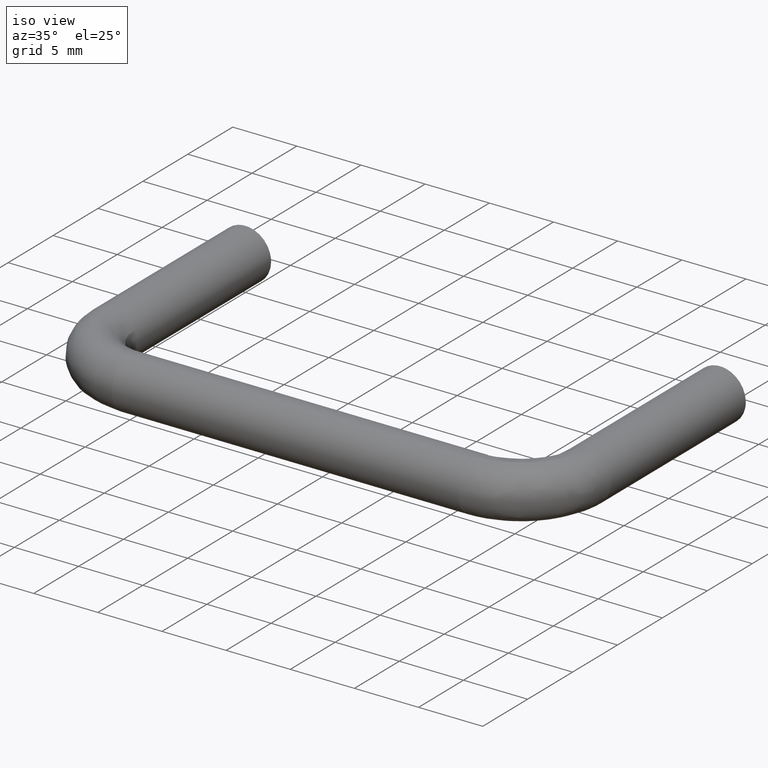
[diagram: clean part render]
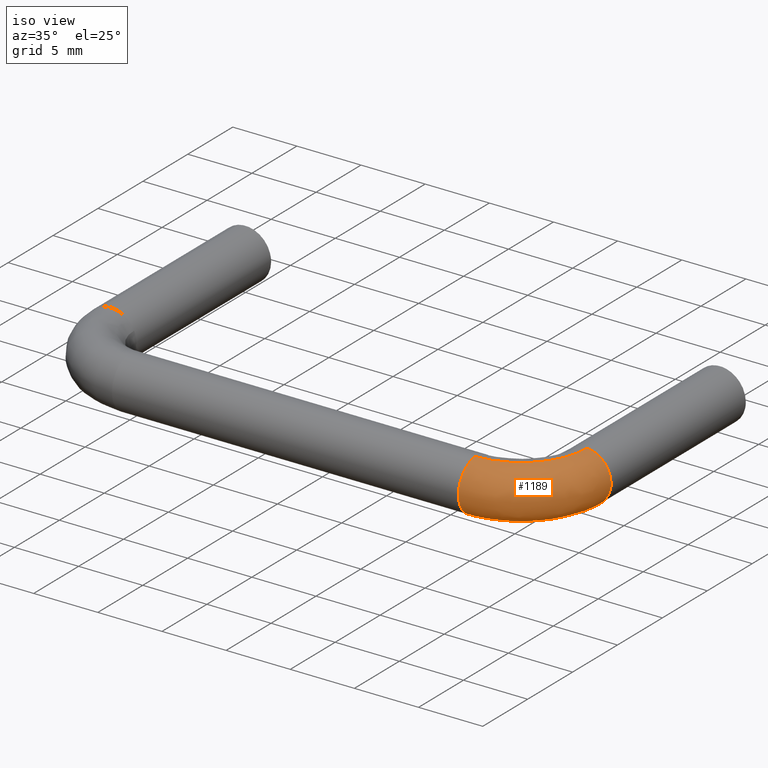
[diagram: same view with one face highlighted and labeled with its STEP entity id]
A machine part, iso view. The second image highlights one B-rep face of the part: STEP entity #1189.
In plain terms, the highlighted face is a freeform B-spline surface patch.
Its self-contained STEP definition (entity closure, byte-faithful):
#426=CARTESIAN_POINT('',(36.974867920065897,-15.000000000115220,-1.999842088405528));
#427=VERTEX_POINT('',#426);
#428=CARTESIAN_POINT('',(38.245028264184292,-14.999999999999980,-1.565217116370958));
#429=VERTEX_POINT('',#428);
#430=CARTESIAN_POINT('',(36.974867920065904,-15.000000000115216,-1.999842088405529));
#431=CARTESIAN_POINT('',(36.987433463848809,-14.999999999999996,-2.0));
#432=CARTESIAN_POINT('',(37.0,-15.0,-2.0));
#433=CARTESIAN_POINT('',(37.698430543524225,-15.000000000000002,-2.000000000000000));
#434=CARTESIAN_POINT('',(38.245028264184292,-14.999999999999982,-1.565217116370958));
#442=(BOUNDED_CURVE()B_SPLINE_CURVE(2,(#430,#431,#432,#433,#434),.UNSPECIFIED.,.F.,.U.)B_SPLINE_CURVE_WITH_KNOTS((3,2,3),(0.247784295892287,0.250000000000000,0.357863779800497),.UNSPECIFIED.)CURVE()GEOMETRIC_REPRESENTATION_ITEM()RATIONAL_B_SPLINE_CURVE((0.994854295576251,0.997404141167816,1.0,0.873629721363388,0.856305649992272))REPRESENTATION_ITEM(''));
#443=EDGE_CURVE('',#427,#429,#442,.T.);
#540=CARTESIAN_POINT('',(39.0,-15.0,0.0));
#541=VERTEX_POINT('',#540);
#542=CARTESIAN_POINT('',(38.245028264184285,-14.999999999999980,-1.565217116370957));
#543=CARTESIAN_POINT('',(38.999999999999993,-14.999999999999995,-0.964686276324077));
#544=CARTESIAN_POINT('',(39.0,-15.0,0.0));
#552=(BOUNDED_CURVE()B_SPLINE_CURVE(2,(#542,#543,#544),.UNSPECIFIED.,.F.,.U.)B_SPLINE_CURVE_WITH_KNOTS((3,3),(0.357863779800497,0.500000000000000),.UNSPECIFIED.)CURVE()GEOMETRIC_REPRESENTATION_ITEM()RATIONAL_B_SPLINE_CURVE((0.856305649992272,0.833477059823160,1.0))REPRESENTATION_ITEM(''));
#553=EDGE_CURVE('',#429,#541,#552,.T.);
#587=CARTESIAN_POINT('',(37.139466504186352,-15.000000000283370,1.995131347608482));
#588=VERTEX_POINT('',#587);
#604=CARTESIAN_POINT('',(39.0,-15.0,0.0));
#605=CARTESIAN_POINT('',(39.000000000000007,-15.0,1.865073692592591));
#606=CARTESIAN_POINT('',(37.139466504186345,-15.000000000283368,1.995131347608482));
#614=(BOUNDED_CURVE()B_SPLINE_CURVE(2,(#604,#605,#606),.UNSPECIFIED.,.F.,.U.)B_SPLINE_CURVE_WITH_KNOTS((3,3),(0.500000000000000,0.737833686356619),.UNSPECIFIED.)CURVE()GEOMETRIC_REPRESENTATION_ITEM()RATIONAL_B_SPLINE_CURVE((1.0,0.721360504242963,0.972879876009491))REPRESENTATION_ITEM(''));
#615=EDGE_CURVE('',#541,#588,#614,.T.);
#642=CARTESIAN_POINT('',(32.000000000036209,-20.139466503343179,1.995131347667422));
#643=VERTEX_POINT('',#642);
#700=CARTESIAN_POINT('',(32.0,-21.325239806286259,-1.497911698276708));
#701=VERTEX_POINT('',#700);
#707=CARTESIAN_POINT('',(32.0,-22.0,0.0));
#708=VERTEX_POINT('',#707);
#709=CARTESIAN_POINT('',(31.999999999999996,-21.325239806286262,-1.497911698276709));
#710=CARTESIAN_POINT('',(32.0,-21.999999999999996,-0.900934773392652));
#711=CARTESIAN_POINT('',(32.0,-22.0,0.0));
#719=(BOUNDED_CURVE()B_SPLINE_CURVE(2,(#709,#710,#711),.UNSPECIFIED.,.F.,.U.)B_SPLINE_CURVE_WITH_KNOTS((3,3),(0.365779829550916,0.500000000000000),.UNSPECIFIED.)CURVE()GEOMETRIC_REPRESENTATION_ITEM()RATIONAL_B_SPLINE_CURVE((0.854350168337204,0.842751288989911,1.0))REPRESENTATION_ITEM(''));
#720=EDGE_CURVE('',#701,#708,#719,.T.);
#722=CARTESIAN_POINT('',(32.0,-22.0,0.0));
#723=CARTESIAN_POINT('',(32.0,-22.0,1.865073694172844));
#724=CARTESIAN_POINT('',(32.000000000036216,-20.139466503343183,1.995131347667422));
#732=(BOUNDED_CURVE()B_SPLINE_CURVE(2,(#722,#723,#724),.UNSPECIFIED.,.F.,.U.)B_SPLINE_CURVE_WITH_KNOTS((3,3),(0.500000000000000,0.737833686501983),.UNSPECIFIED.)CURVE()GEOMETRIC_REPRESENTATION_ITEM()RATIONAL_B_SPLINE_CURVE((1.0,0.721360504072659,0.972879876316947))REPRESENTATION_ITEM(''));
#733=EDGE_CURVE('',#708,#643,#732,.T.);
#771=CARTESIAN_POINT('',(32.000000000309427,-19.974867919650571,-1.999842088400309));
#772=VERTEX_POINT('',#771);
#786=CARTESIAN_POINT('',(32.000000000309427,-19.974867919650567,-1.999842088400309));
#787=CARTESIAN_POINT('',(31.999999999999996,-19.987433463433430,-2.0));
#788=CARTESIAN_POINT('',(32.0,-20.0,-2.0));
#789=CARTESIAN_POINT('',(31.999999999999996,-20.757731774383874,-2.000000000000000));
#790=CARTESIAN_POINT('',(31.999999999999996,-21.325239806286262,-1.497911698276709));
#798=(BOUNDED_CURVE()B_SPLINE_CURVE(2,(#786,#787,#788,#789,#790),.UNSPECIFIED.,.F.,.U.)B_SPLINE_CURVE_WITH_KNOTS((3,2,3),(0.247784295819239,0.250000000000000,0.365779829550916),.UNSPECIFIED.)CURVE()GEOMETRIC_REPRESENTATION_ITEM()RATIONAL_B_SPLINE_CURVE((0.994854295408121,0.997404141082234,1.0,0.864355492196637,0.854350168337204))REPRESENTATION_ITEM(''));
#799=EDGE_CURVE('',#772,#701,#798,.T.);
#1118=CARTESIAN_POINT('',(32.000000000309427,-19.974867919650571,-1.999842088400309));
#1119=CARTESIAN_POINT('',(36.974867920002865,-19.974867919614450,-1.999842088407632));
#1120=CARTESIAN_POINT('',(36.974867920065904,-15.000000000115215,-1.999842088405529));
#1128=(BOUNDED_CURVE()B_SPLINE_CURVE(2,(#1118,#1119,#1120),.UNSPECIFIED.,.F.,.U.)B_SPLINE_CURVE_WITH_KNOTS((3,3),(-1.734750791529143,-0.265249208389729),.UNSPECIFIED.)CURVE()GEOMETRIC_REPRESENTATION_ITEM()RATIONAL_B_SPLINE_CURVE((0.889029723530633,0.628638946248737,0.889029723559385))REPRESENTATION_ITEM(''));
#1129=EDGE_CURVE('',#772,#427,#1128,.T.);
#1134=CARTESIAN_POINT('',(32.000000000036209,-20.139466503343183,1.995131347667422));
#1135=CARTESIAN_POINT('',(37.139466502584156,-20.139466503078477,1.995131347680864));
#1136=CARTESIAN_POINT('',(37.139466504186338,-15.000000000283373,1.995131347608482));
#1144=(BOUNDED_CURVE()B_SPLINE_CURVE(2,(#1134,#1135,#1136),.UNSPECIFIED.,.F.,.U.)B_SPLINE_CURVE_WITH_KNOTS((3,3),(-1.734750791643761,-0.265249208456181),.UNSPECIFIED.)CURVE()GEOMETRIC_REPRESENTATION_ITEM()RATIONAL_B_SPLINE_CURVE((0.869031711870188,0.614498216555533,0.869031711835566))REPRESENTATION_ITEM(''));
#1145=EDGE_CURVE('',#643,#588,#1144,.T.);
#1150=CARTESIAN_POINT('',(31.656015158313142,-19.934807363819239,-1.999489128105120));
#1151=CARTESIAN_POINT('',(37.330341110615265,-20.330340962292205,-1.999489128105122));
#1152=CARTESIAN_POINT('',(36.934807354247454,-14.656015020996279,-1.999489128105120));
#1153=CARTESIAN_POINT('',(31.655041490187919,-19.948775609078805,-1.999665093439622));
#1154=CARTESIAN_POINT('',(37.345428936027879,-20.345428787284984,-1.999665093439623));
#1155=CARTESIAN_POINT('',(36.948775599479909,-14.655041352482375,-1.999665093439622));
#1156=CARTESIAN_POINT('',(31.514998910677480,-21.957826790600048,-2.024974168174337));
#1157=CARTESIAN_POINT('',(39.515509207997162,-22.515508998869205,-2.024974168174337));
#1158=CARTESIAN_POINT('',(38.957826777104323,-14.514998717067693,-2.024974168174337));
#1159=CARTESIAN_POINT('',(31.513251298798462,-21.982898034807718,-0.025132079766705));
#1160=CARTESIAN_POINT('',(39.542589957830323,-22.542589747948806,-0.025132079766705));
#1161=CARTESIAN_POINT('',(38.982898021263352,-14.513251104491044,-0.025132079766705));
#1162=CARTESIAN_POINT('',(31.511600935508906,-22.006574150517817,1.863425675679395));
#1163=CARTESIAN_POINT('',(39.568163757090353,-22.568163546497214,1.863425675679394));
#1164=CARTESIAN_POINT('',(39.006574136927540,-14.511600740542663,1.863425675679395));
#1165=CARTESIAN_POINT('',(31.643607504989738,-20.112807588154173,1.996127656626344));
#1166=CARTESIAN_POINT('',(37.522608375276420,-20.522608221603281,1.996127656626344));
#1167=CARTESIAN_POINT('',(37.112807578237117,-14.643607362719800,1.996127656626345));
#1168=CARTESIAN_POINT('',(31.644593211447109,-20.098666640952722,1.997118555791739));
#1169=CARTESIAN_POINT('',(37.507334005548529,-20.507333852300423,1.997118555791738));
#1170=CARTESIAN_POINT('',(37.098666631063097,-14.644593069570657,1.997118555791739));
#1178=(BOUNDED_SURFACE()B_SPLINE_SURFACE(2,2,((#1150,#1153,#1156,#1159,#1162,#1165,#1168),(#1151,#1154,#1157,#1160,#1163,#1166,#1169),(#1152,#1155,#1158,#1161,#1164,#1167,#1170)),.UNSPECIFIED.,.F.,.F.,.U.)B_SPLINE_SURFACE_WITH_KNOTS((3,3),(3,1,2,1,3),(0.0,12.756329644327010),(0.0,0.033100193865693,3.346808692850463,6.527968851875842,6.560782661441206),.UNSPECIFIED.)GEOMETRIC_REPRESENTATION_ITEM()RATIONAL_B_SPLINE_SURFACE(((0.921703927040381,0.919023011140657,0.647951709431553,0.916342095240933,0.658687324863928,0.898174816470869,0.900619919330965),(0.604845136684119,0.603085852714250,0.425202094466791,0.601326568744382,0.432247073437895,0.589404746683645,0.591009284247427),(0.921703938725217,0.919023022791506,0.647951717645915,0.916342106857795,0.658687333214390,0.898174827857416,0.900619930748510)))REPRESENTATION_ITEM('')SURFACE());
#1179=ORIENTED_EDGE('',*,*,#615,.T.);
#1180=ORIENTED_EDGE('',*,*,#1145,.F.);
#1181=ORIENTED_EDGE('',*,*,#733,.F.);
#1182=ORIENTED_EDGE('',*,*,#720,.F.);
#1183=ORIENTED_EDGE('',*,*,#799,.F.);
#1184=ORIENTED_EDGE('',*,*,#1129,.T.);
#1185=ORIENTED_EDGE('',*,*,#443,.T.);
#1186=ORIENTED_EDGE('',*,*,#553,.T.);
#1187=EDGE_LOOP('',(#1179,#1180,#1181,#1182,#1183,#1184,#1185,#1186));
#1188=FACE_OUTER_BOUND('',#1187,.T.);
#1189=ADVANCED_FACE('',(#1188),#1178,.T.);